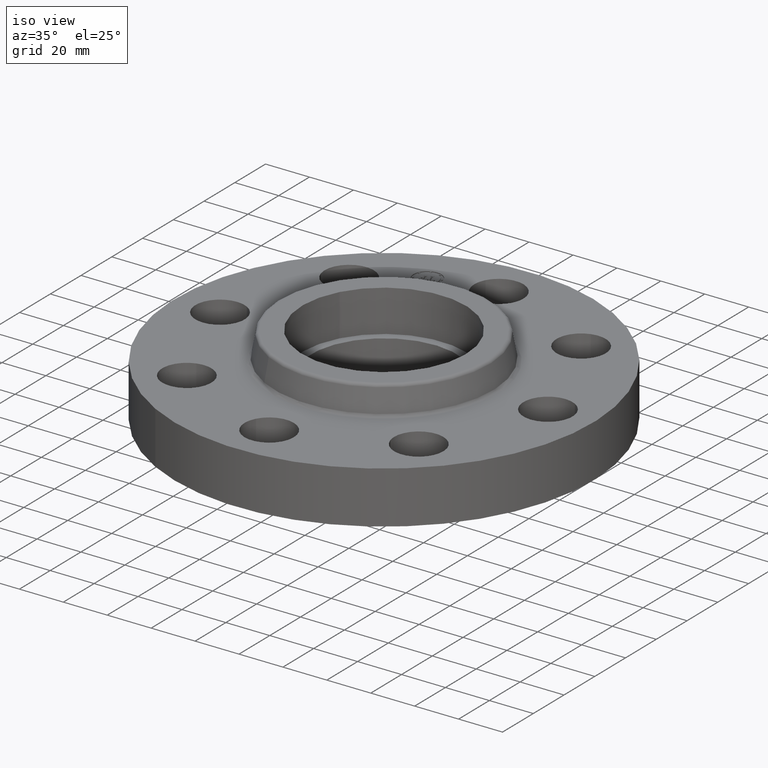
[diagram: clean part render]
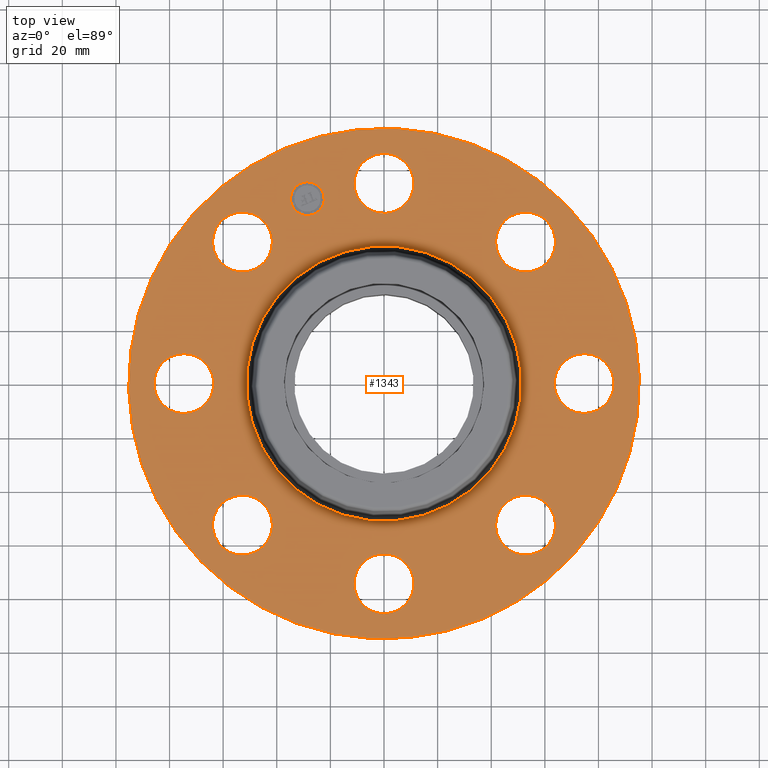
[diagram: tour spotlight — one face highlighted and labeled with its STEP entity id]
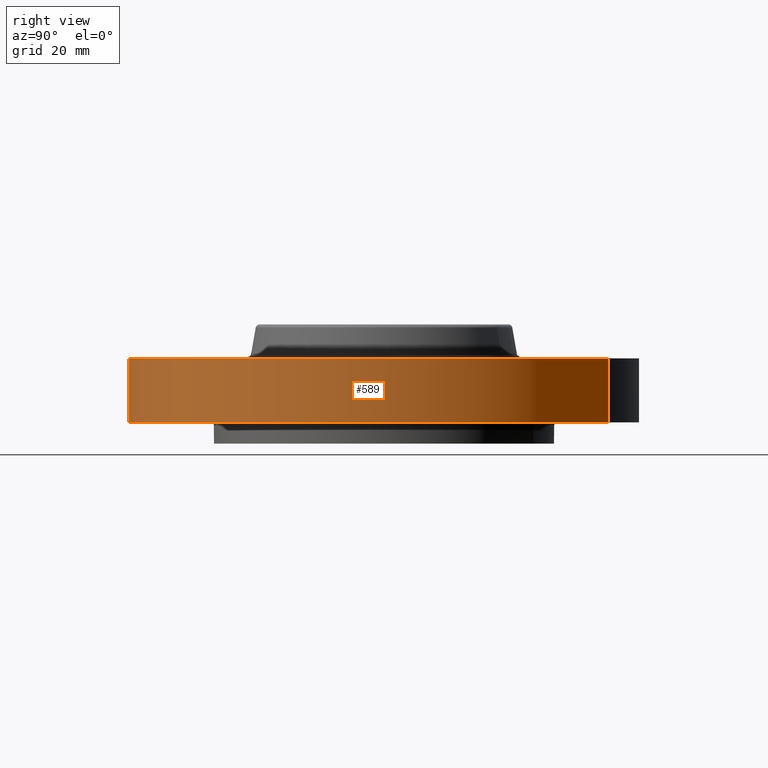
[diagram: tour spotlight — one face highlighted and labeled with its STEP entity id]
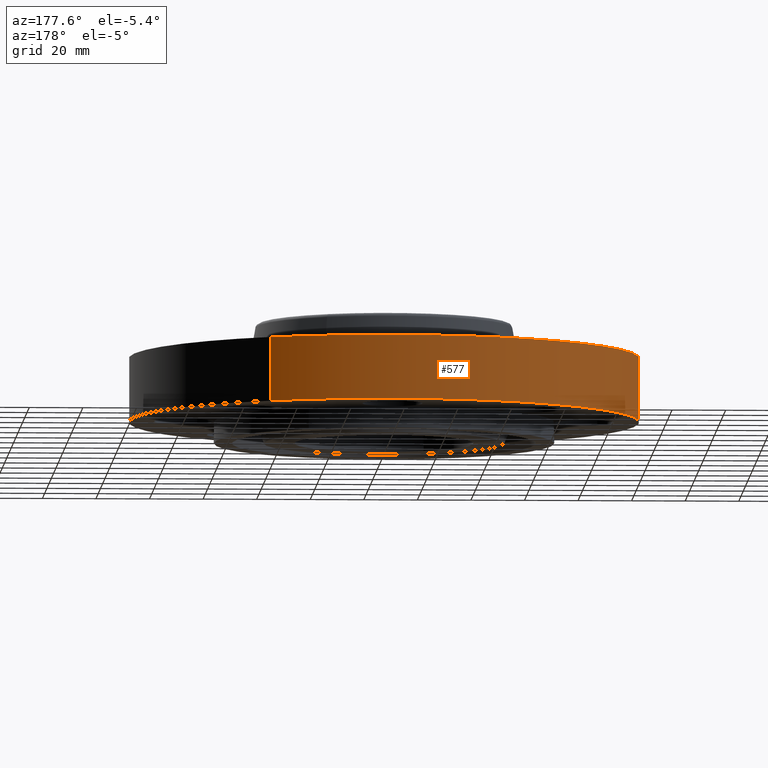
[diagram: tour spotlight — one face highlighted and labeled with its STEP entity id]
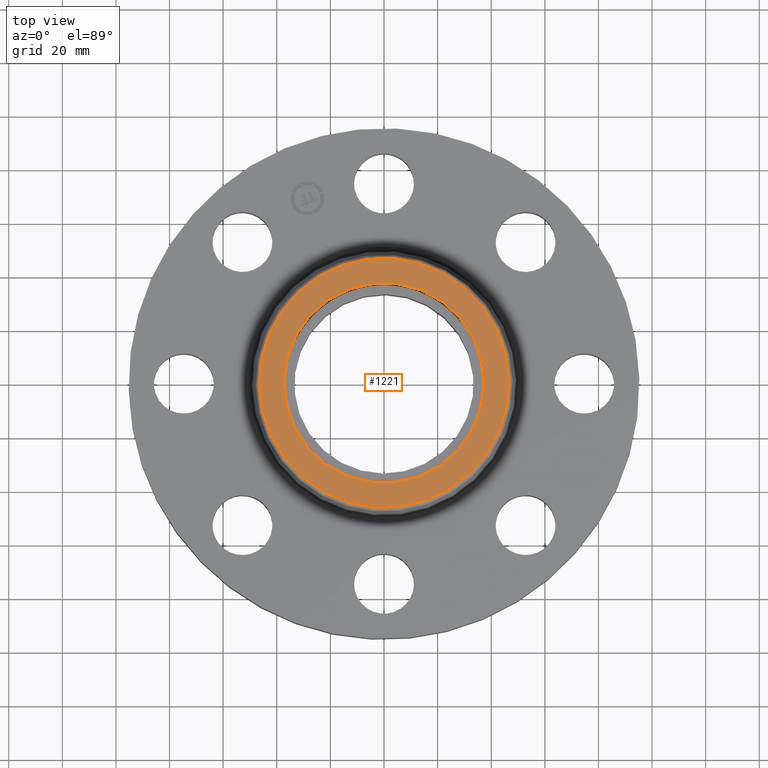
[diagram: tour spotlight — one face highlighted and labeled with its STEP entity id]
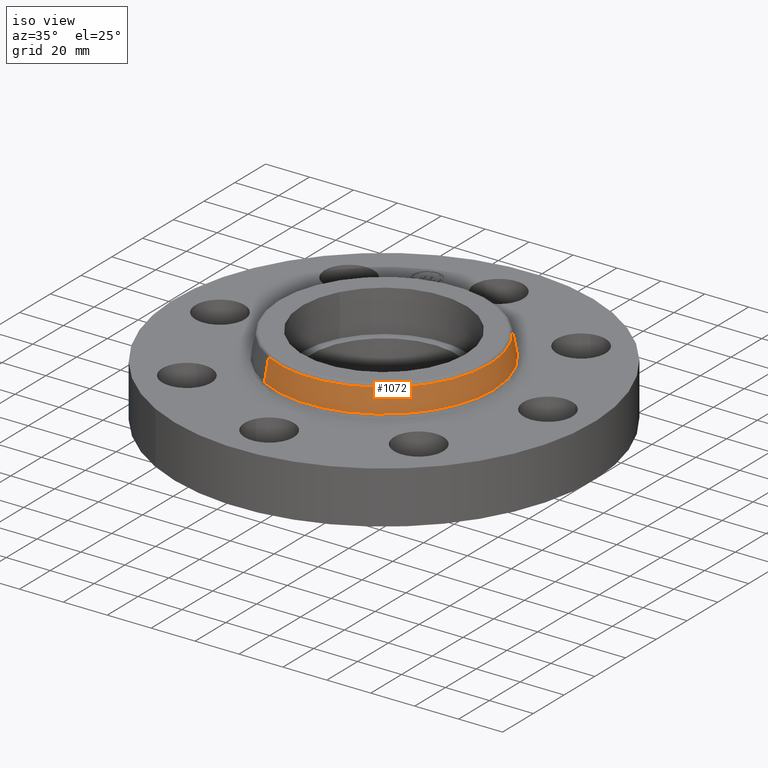
[diagram: tour spotlight — one face highlighted and labeled with its STEP entity id]
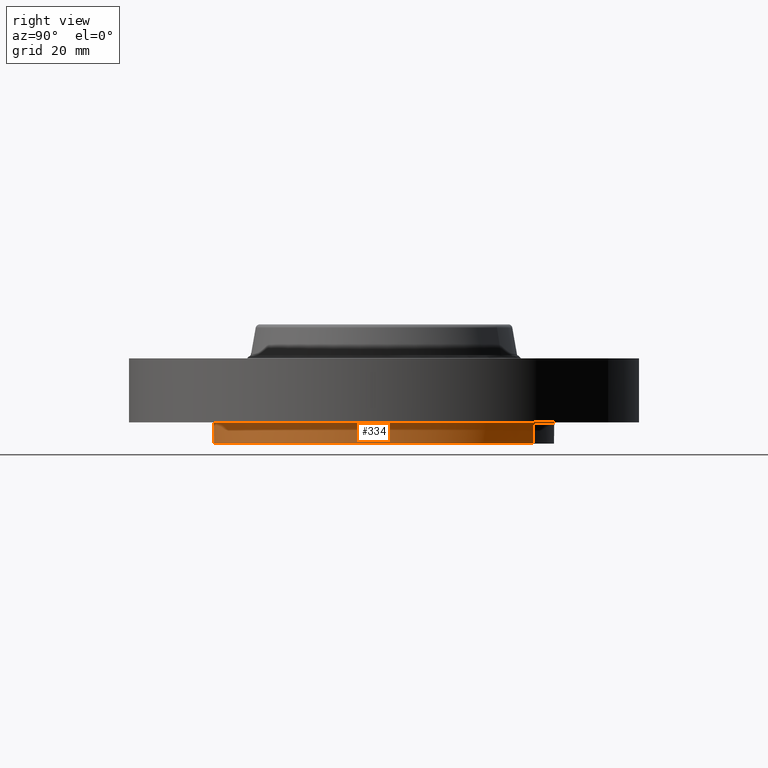
[diagram: tour spotlight — one face highlighted and labeled with its STEP entity id]
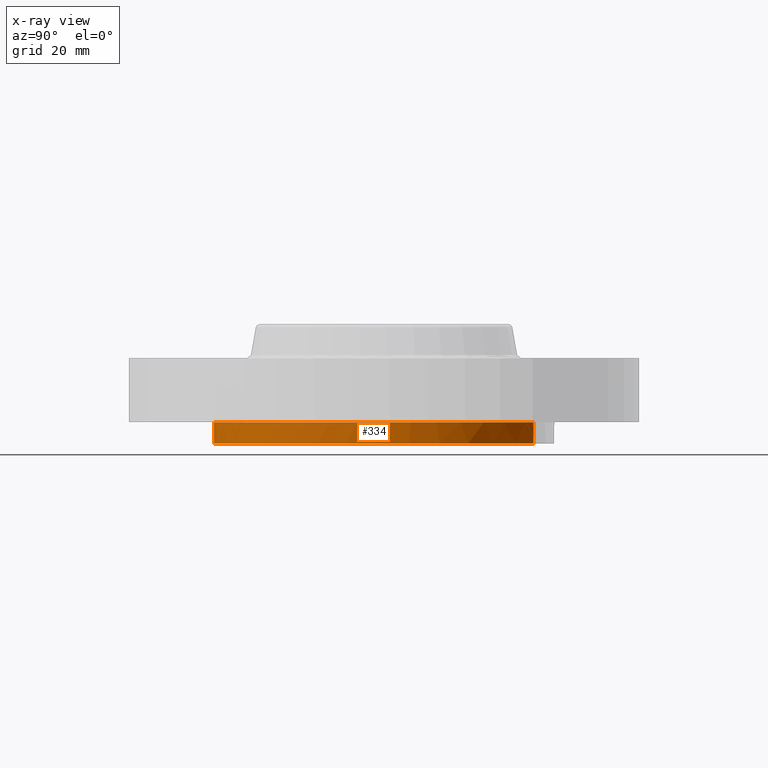
[diagram: x-ray of the same camera — body ghosted, this tour face saturated]
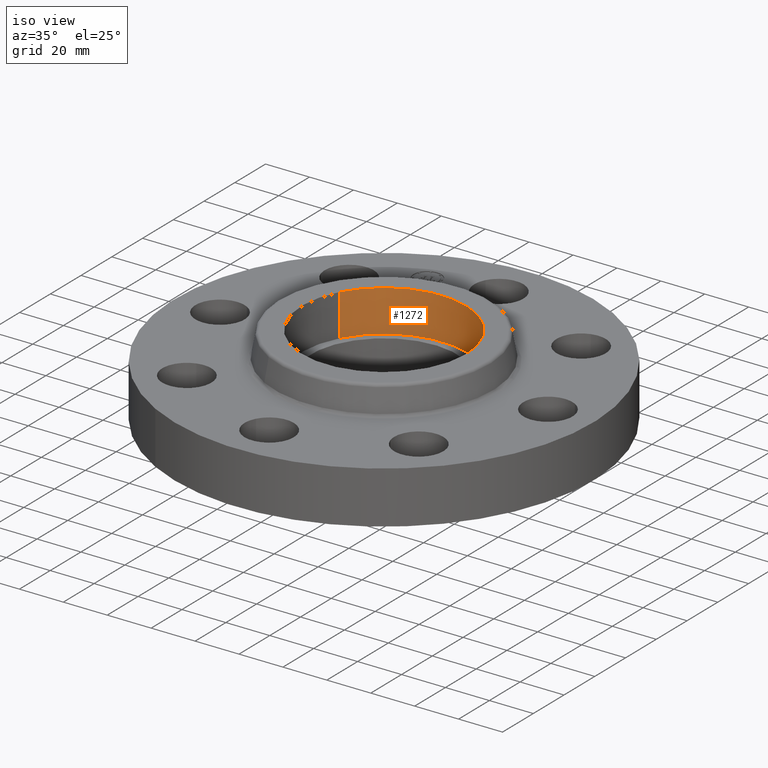
[diagram: tour spotlight — one face highlighted and labeled with its STEP entity id]
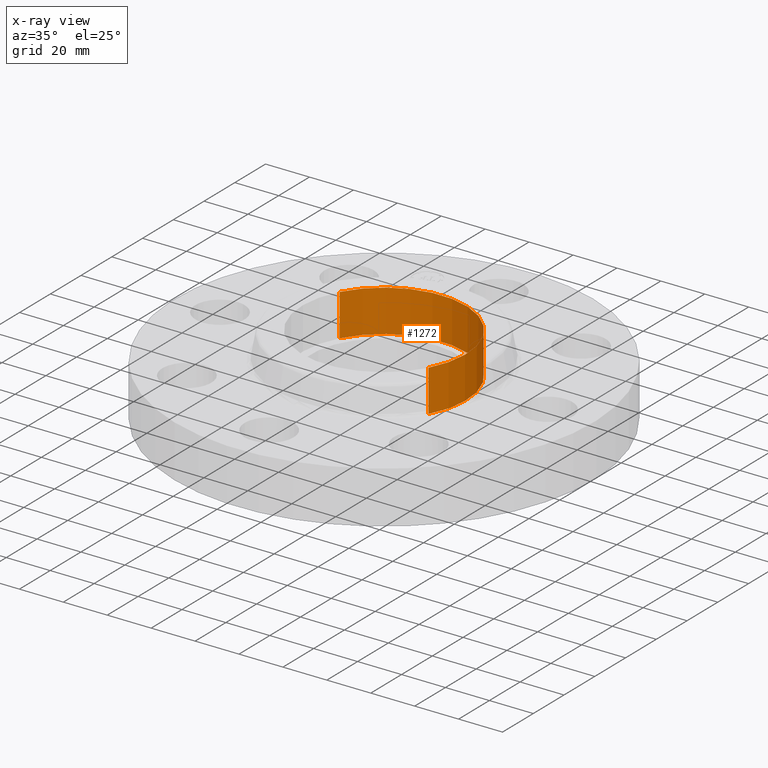
[diagram: x-ray of the same camera — body ghosted, this tour face saturated]
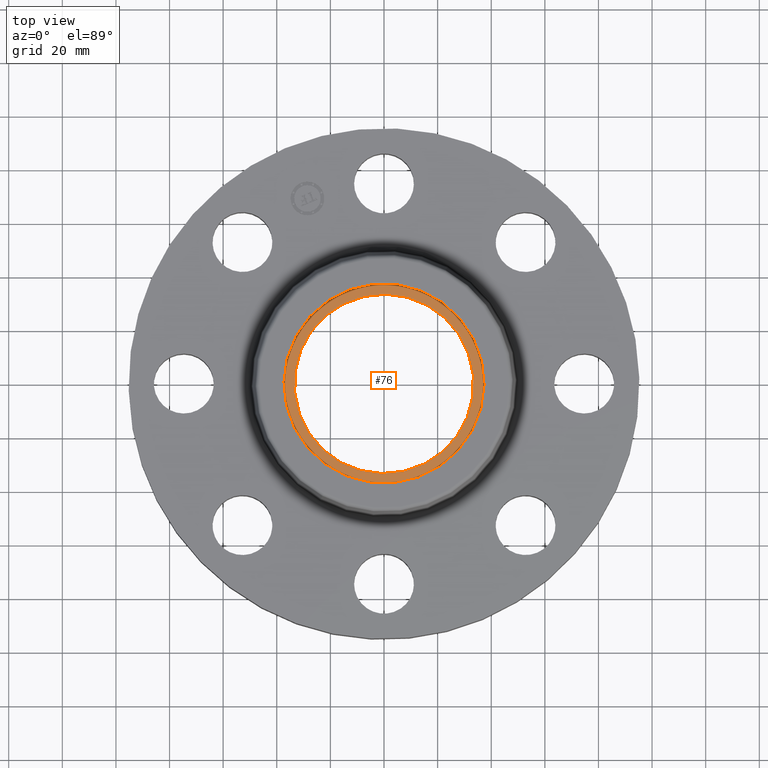
[diagram: tour spotlight — one face highlighted and labeled with its STEP entity id]
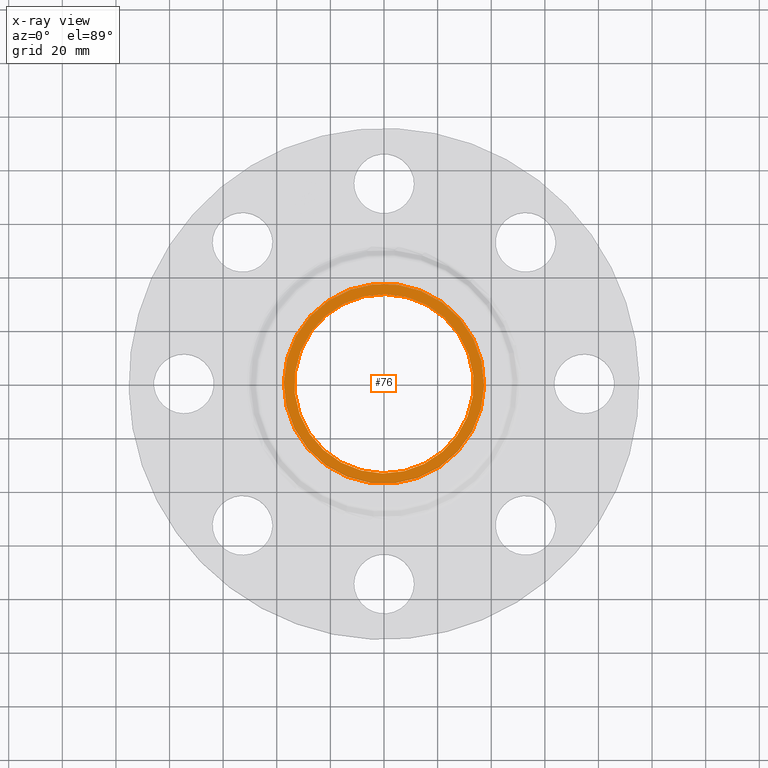
[diagram: x-ray of the same camera — body ghosted, this tour face saturated]
A machine part: a face-by-face anatomy tour. The part has 430 B-rep faces; the first image is the clean iso view, then the 8 largest visible faces are spotlighted one at a time (largest first), each with its STEP entity span.

Face 1 — top view, entity #1343. In plain terms, the highlighted planar face has unit normal (0, 0, -1).
Definition (entity closure, byte-faithful):
#561=AXIS2_PLACEMENT_3D('Circle Axis2P3D',#559,#560,$) ;
#580=AXIS2_PLACEMENT_3D('Circle Axis2P3D',#578,#579,$) ;
#611=AXIS2_PLACEMENT_3D('Circle Axis2P3D',#609,#610,$) ;
#623=AXIS2_PLACEMENT_3D('Circle Axis2P3D',#621,#622,$) ;
#655=AXIS2_PLACEMENT_3D('Circle Axis2P3D',#653,#654,$) ;
#667=AXIS2_PLACEMENT_3D('Circle Axis2P3D',#665,#666,$) ;
#699=AXIS2_PLACEMENT_3D('Circle Axis2P3D',#697,#698,$) ;
#711=AXIS2_PLACEMENT_3D('Circle Axis2P3D',#709,#710,$) ;
#743=AXIS2_PLACEMENT_3D('Circle Axis2P3D',#741,#742,$) ;
#755=AXIS2_PLACEMENT_3D('Circle Axis2P3D',#753,#754,$) ;
#787=AXIS2_PLACEMENT_3D('Circle Axis2P3D',#785,#786,$) ;
#799=AXIS2_PLACEMENT_3D('Circle Axis2P3D',#797,#798,$) ;
#831=AXIS2_PLACEMENT_3D('Circle Axis2P3D',#829,#830,$) ;
#843=AXIS2_PLACEMENT_3D('Circle Axis2P3D',#841,#842,$) ;
#875=AXIS2_PLACEMENT_3D('Circle Axis2P3D',#873,#874,$) ;
#887=AXIS2_PLACEMENT_3D('Circle Axis2P3D',#885,#886,$) ;
#919=AXIS2_PLACEMENT_3D('Circle Axis2P3D',#917,#918,$) ;
#931=AXIS2_PLACEMENT_3D('Circle Axis2P3D',#929,#930,$) ;
#949=AXIS2_PLACEMENT_3D('Circle Axis2P3D',#947,#948,$) ;
#984=AXIS2_PLACEMENT_3D('Circle Axis2P3D',#982,#983,$) ;
#1283=AXIS2_PLACEMENT_3D('Plane Axis2P3D',#1280,#1281,#1282) ;
#1327=AXIS2_PLACEMENT_3D('Circle Axis2P3D',#1325,#1326,$) ;
#1336=AXIS2_PLACEMENT_3D('Circle Axis2P3D',#1334,#1335,$) ;
#556=CARTESIAN_POINT('Vertex',(-1.79784576977,-3.2909346071,0.940000000004)) ;
#559=CARTESIAN_POINT('Axis2P3D Location',(0.,0.,0.940000000004)) ;
#563=CARTESIAN_POINT('Vertex',(1.79784576977,3.2909346071,0.940000000004)) ;
#578=CARTESIAN_POINT('Axis2P3D Location',(0.,0.,0.940000000004)) ;
#599=CARTESIAN_POINT('Vertex',(2.50109577389,-1.95501654299,0.940000000004)) ;
#606=CARTESIAN_POINT('Vertex',(1.6566920995,-2.2027713304,0.940000000004)) ;
#609=CARTESIAN_POINT('Axis2P3D Location',(2.0788939367,-2.0788939367,0.940000000004)) ;
#621=CARTESIAN_POINT('Axis2P3D Location',(2.0788939367,-2.0788939367,0.940000000004)) ;
#643=CARTESIAN_POINT('Vertex',(0.386136327233,-3.150947237,0.940000000004)) ;
#650=CARTESIAN_POINT('Vertex',(-0.386136327233,-2.72905276303,0.940000000004)) ;
#653=CARTESIAN_POINT('Axis2P3D Location',(3.60046158951E-016,-2.94000000001,0.940000000004)) ;
#665=CARTESIAN_POINT('Axis2P3D Location',(3.60046158951E-016,-2.94000000001,0.940000000004)) ;
#687=CARTESIAN_POINT('Vertex',(-1.95501654299,-2.50109577389,0.940000000004)) ;
#694=CARTESIAN_POINT('Vertex',(-2.2027713304,-1.6566920995,0.940000000004)) ;
#697=CARTESIAN_POINT('Axis2P3D Location',(-2.0788939367,-2.0788939367,0.940000000004)) ;
#709=CARTESIAN_POINT('Axis2P3D Location',(-2.0788939367,-2.0788939367,0.940000000004)) ;
#731=CARTESIAN_POINT('Vertex',(-3.150947237,-0.386136327233,0.940000000004)) ;
#738=CARTESIAN_POINT('Vertex',(-2.72905276303,0.386136327233,0.940000000004)) ;
#741=CARTESIAN_POINT('Axis2P3D Location',(-2.94000000001,-5.40069238426E-016,0.940000000004)) ;
#753=CARTESIAN_POINT('Axis2P3D Location',(-2.94000000001,-5.40069238426E-016,0.940000000004)) ;
#775=CARTESIAN_POINT('Vertex',(-2.50109577389,1.95501654299,0.940000000004)) ;
#782=CARTESIAN_POINT('Vertex',(-1.6566920995,2.2027713304,0.940000000004)) ;
#785=CARTESIAN_POINT('Axis2P3D Location',(-2.0788939367,2.0788939367,0.940000000004)) ;
#797=CARTESIAN_POINT('Axis2P3D Location',(-2.0788939367,2.0788939367,0.940000000004)) ;
#819=CARTESIAN_POINT('Vertex',(-0.386136327233,3.150947237,0.940000000004)) ;
#826=CARTESIAN_POINT('Vertex',(0.386136327233,2.72905276303,0.940000000004)) ;
#829=CARTESIAN_POINT('Axis2P3D Location',(0.,2.94000000001,0.940000000004)) ;
#841=CARTESIAN_POINT('Axis2P3D Location',(0.,2.94000000001,0.940000000004)) ;
#863=CARTESIAN_POINT('Vertex',(1.95501654299,2.50109577389,0.940000000004)) ;
#870=CARTESIAN_POINT('Vertex',(2.2027713304,1.6566920995,0.940000000004)) ;
#873=CARTESIAN_POINT('Axis2P3D Location',(2.0788939367,2.0788939367,0.940000000004)) ;
#885=CARTESIAN_POINT('Axis2P3D Location',(2.0788939367,2.0788939367,0.940000000004)) ;
#907=CARTESIAN_POINT('Vertex',(3.150947237,0.386136327233,0.940000000004)) ;
#914=CARTESIAN_POINT('Vertex',(2.72905276303,-0.386136327233,0.940000000004)) ;
#917=CARTESIAN_POINT('Axis2P3D Location',(2.94000000001,-3.79459389627E-016,0.940000000004)) ;
#929=CARTESIAN_POINT('Axis2P3D Location',(2.94000000001,-3.79459389627E-016,0.940000000004)) ;
#947=CARTESIAN_POINT('Axis2P3D Location',(0.,0.,0.940000000004)) ;
#951=CARTESIAN_POINT('Vertex',(0.968605458611,1.77302039917,0.940000000004)) ;
#953=CARTESIAN_POINT('Vertex',(-0.968605458611,-1.77302039917,0.940000000004)) ;
#982=CARTESIAN_POINT('Axis2P3D Location',(0.,0.,0.940000000004)) ;
#1280=CARTESIAN_POINT('Axis2P3D Location',(0.,3.75000000002,0.940000000004)) ;
#1325=CARTESIAN_POINT('Axis2P3D Location',(-1.12508929116,2.71620582559,0.940000000004)) ;
#1329=CARTESIAN_POINT('Vertex',(-1.35374947546,2.62149167608,0.940000000004)) ;
#1331=CARTESIAN_POINT('Vertex',(-0.89642910686,2.8109199751,0.940000000004)) ;
#1334=CARTESIAN_POINT('Axis2P3D Location',(-1.12508929116,2.71620582559,0.940000000004)) ;
#560=DIRECTION('Axis2P3D Direction',(0.,0.,-0.0393700787402)) ;
#579=DIRECTION('Axis2P3D Direction',(0.,0.,-0.0393700787402)) ;
#610=DIRECTION('Axis2P3D Direction',(-0.,0.,-0.0393700787402)) ;
#622=DIRECTION('Axis2P3D Direction',(-0.,0.,-0.0393700787402)) ;
#654=DIRECTION('Axis2P3D Direction',(-0.,0.,-0.0393700787402)) ;
#666=DIRECTION('Axis2P3D Direction',(-0.,0.,-0.0393700787402)) ;
#698=DIRECTION('Axis2P3D Direction',(0.,0.,-0.0393700787402)) ;
#710=DIRECTION('Axis2P3D Direction',(0.,0.,-0.0393700787402)) ;
#742=DIRECTION('Axis2P3D Direction',(0.,0.,-0.0393700787402)) ;
#754=DIRECTION('Axis2P3D Direction',(0.,0.,-0.0393700787402)) ;
#786=DIRECTION('Axis2P3D Direction',(0.,0.,-0.0393700787402)) ;
#798=DIRECTION('Axis2P3D Direction',(0.,0.,-0.0393700787402)) ;
#830=DIRECTION('Axis2P3D Direction',(0.,-0.,-0.0393700787402)) ;
#842=DIRECTION('Axis2P3D Direction',(0.,-0.,-0.0393700787402)) ;
#874=DIRECTION('Axis2P3D Direction',(0.,-0.,-0.0393700787402)) ;
#886=DIRECTION('Axis2P3D Direction',(0.,-0.,-0.0393700787402)) ;
#918=DIRECTION('Axis2P3D Direction',(0.,-0.,-0.0393700787402)) ;
#930=DIRECTION('Axis2P3D Direction',(0.,-0.,-0.0393700787402)) ;
#948=DIRECTION('Axis2P3D Direction',(0.,0.,-0.0393700787402)) ;
#983=DIRECTION('Axis2P3D Direction',(0.,0.,-0.0393700787402)) ;
#1281=DIRECTION('Axis2P3D Direction',(0.,0.,-0.0393700787402)) ;
#1282=DIRECTION('Axis2P3D XDirection',(0.0393700787402,0.,0.)) ;
#1326=DIRECTION('Axis2P3D Direction',(0.,0.,-0.0393700787402)) ;
#1335=DIRECTION('Axis2P3D Direction',(0.,0.,-0.0393700787402)) ;
#1286=ORIENTED_EDGE('',*,*,#582,.F.) ;
#1287=ORIENTED_EDGE('',*,*,#565,.F.) ;
#1290=ORIENTED_EDGE('',*,*,#833,.T.) ;
#1291=ORIENTED_EDGE('',*,*,#845,.T.) ;
#1294=ORIENTED_EDGE('',*,*,#986,.T.) ;
#1295=ORIENTED_EDGE('',*,*,#955,.T.) ;
#1298=ORIENTED_EDGE('',*,*,#889,.T.) ;
#1299=ORIENTED_EDGE('',*,*,#877,.T.) ;
#1302=ORIENTED_EDGE('',*,*,#933,.T.) ;
#1303=ORIENTED_EDGE('',*,*,#921,.T.) ;
#1306=ORIENTED_EDGE('',*,*,#625,.T.) ;
#1307=ORIENTED_EDGE('',*,*,#613,.T.) ;
#1310=ORIENTED_EDGE('',*,*,#669,.T.) ;
#1311=ORIENTED_EDGE('',*,*,#657,.T.) ;
#1314=ORIENTED_EDGE('',*,*,#713,.T.) ;
#1315=ORIENTED_EDGE('',*,*,#701,.T.) ;
#1318=ORIENTED_EDGE('',*,*,#757,.T.) ;
#1319=ORIENTED_EDGE('',*,*,#745,.T.) ;
#1322=ORIENTED_EDGE('',*,*,#801,.T.) ;
#1323=ORIENTED_EDGE('',*,*,#789,.T.) ;
#1340=ORIENTED_EDGE('',*,*,#1333,.T.) ;
#1341=ORIENTED_EDGE('',*,*,#1338,.T.) ;
#1292=FACE_BOUND('',#1289,.T.) ;
#1296=FACE_BOUND('',#1293,.T.) ;
#1300=FACE_BOUND('',#1297,.T.) ;
#1304=FACE_BOUND('',#1301,.T.) ;
#1308=FACE_BOUND('',#1305,.T.) ;
#1312=FACE_BOUND('',#1309,.T.) ;
#1316=FACE_BOUND('',#1313,.T.) ;
#1320=FACE_BOUND('',#1317,.T.) ;
#1324=FACE_BOUND('',#1321,.T.) ;
#1342=FACE_BOUND('',#1339,.T.) ;
#1343=ADVANCED_FACE('PartBody',(#1288,#1292,#1296,#1300,#1304,#1308,#1312,#1316,#1320,#1324,#1342),#1284,.F.) ;
#562=CIRCLE('generated circle',#561,3.75000000002) ;
#581=CIRCLE('generated circle',#580,3.75000000002) ;
#612=CIRCLE('generated circle',#611,0.440000000002) ;
#624=CIRCLE('generated circle',#623,0.440000000002) ;
#656=CIRCLE('generated circle',#655,0.440000000002) ;
#668=CIRCLE('generated circle',#667,0.440000000002) ;
#700=CIRCLE('generated circle',#699,0.440000000002) ;
#712=CIRCLE('generated circle',#711,0.440000000002) ;
#744=CIRCLE('generated circle',#743,0.440000000002) ;
#756=CIRCLE('generated circle',#755,0.440000000002) ;
#788=CIRCLE('generated circle',#787,0.440000000002) ;
#800=CIRCLE('generated circle',#799,0.440000000002) ;
#832=CIRCLE('generated circle',#831,0.440000000002) ;
#844=CIRCLE('generated circle',#843,0.440000000002) ;
#876=CIRCLE('generated circle',#875,0.440000000002) ;
#888=CIRCLE('generated circle',#887,0.440000000002) ;
#920=CIRCLE('generated circle',#919,0.440000000002) ;
#932=CIRCLE('generated circle',#931,0.440000000002) ;
#950=CIRCLE('generated circle',#949,2.02034597788) ;
#985=CIRCLE('generated circle',#984,2.02034597788) ;
#1328=CIRCLE('generated circle',#1327,0.247500000001) ;
#1337=CIRCLE('generated circle',#1336,0.247500000001) ;
#565=EDGE_CURVE('',#557,#564,#562,.T.) ;
#582=EDGE_CURVE('',#564,#557,#581,.T.) ;
#613=EDGE_CURVE('',#600,#607,#612,.T.) ;
#625=EDGE_CURVE('',#607,#600,#624,.T.) ;
#657=EDGE_CURVE('',#644,#651,#656,.T.) ;
#669=EDGE_CURVE('',#651,#644,#668,.T.) ;
#701=EDGE_CURVE('',#688,#695,#700,.T.) ;
#713=EDGE_CURVE('',#695,#688,#712,.T.) ;
#745=EDGE_CURVE('',#732,#739,#744,.T.) ;
#757=EDGE_CURVE('',#739,#732,#756,.T.) ;
#789=EDGE_CURVE('',#776,#783,#788,.T.) ;
#801=EDGE_CURVE('',#783,#776,#800,.T.) ;
#833=EDGE_CURVE('',#820,#827,#832,.T.) ;
#845=EDGE_CURVE('',#827,#820,#844,.T.) ;
#877=EDGE_CURVE('',#864,#871,#876,.T.) ;
#889=EDGE_CURVE('',#871,#864,#888,.T.) ;
#921=EDGE_CURVE('',#908,#915,#920,.T.) ;
#933=EDGE_CURVE('',#915,#908,#932,.T.) ;
#955=EDGE_CURVE('',#952,#954,#950,.T.) ;
#986=EDGE_CURVE('',#954,#952,#985,.T.) ;
#1333=EDGE_CURVE('',#1330,#1332,#1328,.T.) ;
#1338=EDGE_CURVE('',#1332,#1330,#1337,.T.) ;
#1285=EDGE_LOOP('',(#1286,#1287)) ;
#1289=EDGE_LOOP('',(#1290,#1291)) ;
#1293=EDGE_LOOP('',(#1294,#1295)) ;
#1297=EDGE_LOOP('',(#1298,#1299)) ;
#1301=EDGE_LOOP('',(#1302,#1303)) ;
#1305=EDGE_LOOP('',(#1306,#1307)) ;
#1309=EDGE_LOOP('',(#1310,#1311)) ;
#1313=EDGE_LOOP('',(#1314,#1315)) ;
#1317=EDGE_LOOP('',(#1318,#1319)) ;
#1321=EDGE_LOOP('',(#1322,#1323)) ;
#1339=EDGE_LOOP('',(#1340,#1341)) ;
#1288=FACE_OUTER_BOUND('',#1285,.T.) ;
#1284=PLANE('',#1283) ;
#557=VERTEX_POINT('',#556) ;
#564=VERTEX_POINT('',#563) ;
#600=VERTEX_POINT('',#599) ;
#607=VERTEX_POINT('',#606) ;
#644=VERTEX_POINT('',#643) ;
#651=VERTEX_POINT('',#650) ;
#688=VERTEX_POINT('',#687) ;
#695=VERTEX_POINT('',#694) ;
#732=VERTEX_POINT('',#731) ;
#739=VERTEX_POINT('',#738) ;
#776=VERTEX_POINT('',#775) ;
#783=VERTEX_POINT('',#782) ;
#820=VERTEX_POINT('',#819) ;
#827=VERTEX_POINT('',#826) ;
#864=VERTEX_POINT('',#863) ;
#871=VERTEX_POINT('',#870) ;
#908=VERTEX_POINT('',#907) ;
#915=VERTEX_POINT('',#914) ;
#952=VERTEX_POINT('',#951) ;
#954=VERTEX_POINT('',#953) ;
#1330=VERTEX_POINT('',#1329) ;
#1332=VERTEX_POINT('',#1331) ;

Face 2 — right view, entity #589. In plain terms, the highlighted cylindrical surface (partial cylindrical patch) has radius 95.25 mm, axis along (0, 0, -1).
Definition (entity closure, byte-faithful):
#351=AXIS2_PLACEMENT_3D('Circle Axis2P3D',#349,#350,$) ;
#550=AXIS2_PLACEMENT_3D('Cylinder Axis2P3D',#547,#548,#549) ;
#580=AXIS2_PLACEMENT_3D('Circle Axis2P3D',#578,#579,$) ;
#344=CARTESIAN_POINT('Vertex',(-1.79784576977,-3.2909346071,2.79741234551E-016)) ;
#346=CARTESIAN_POINT('Vertex',(1.79784576977,3.2909346071,2.79741234551E-016)) ;
#349=CARTESIAN_POINT('Axis2P3D Location',(0.,0.,0.)) ;
#547=CARTESIAN_POINT('Axis2P3D Location',(0.,0.,0.563500000002)) ;
#552=CARTESIAN_POINT('Line Origine',(-1.79784576977,-3.2909346071,0.470000000002)) ;
#556=CARTESIAN_POINT('Vertex',(-1.79784576977,-3.2909346071,0.940000000004)) ;
#563=CARTESIAN_POINT('Vertex',(1.79784576977,3.2909346071,0.940000000004)) ;
#566=CARTESIAN_POINT('Line Origine',(1.79784576977,3.2909346071,0.470000000002)) ;
#578=CARTESIAN_POINT('Axis2P3D Location',(0.,0.,0.940000000004)) ;
#350=DIRECTION('Axis2P3D Direction',(0.,0.,-0.0393700787402)) ;
#548=DIRECTION('Axis2P3D Direction',(0.,0.,-0.0393700787402)) ;
#549=DIRECTION('Axis2P3D XDirection',(0.0188750212049,0.0345504945626,0.)) ;
#553=DIRECTION('Vector Direction',(0.,0.,-0.0393700787402)) ;
#567=DIRECTION('Vector Direction',(0.,0.,-0.0393700787402)) ;
#579=DIRECTION('Axis2P3D Direction',(0.,0.,-0.0393700787402)) ;
#554=VECTOR('Line Direction',#553,0.0393700787402) ;
#568=VECTOR('Line Direction',#567,0.0393700787402) ;
#584=ORIENTED_EDGE('',*,*,#353,.F.) ;
#585=ORIENTED_EDGE('',*,*,#570,.T.) ;
#586=ORIENTED_EDGE('',*,*,#582,.T.) ;
#587=ORIENTED_EDGE('',*,*,#558,.F.) ;
#589=ADVANCED_FACE('PartBody',(#588),#551,.T.) ;
#352=CIRCLE('generated circle',#351,3.75000000002) ;
#581=CIRCLE('generated circle',#580,3.75000000002) ;
#551=CYLINDRICAL_SURFACE('generated cylinder',#550,3.75000000002) ;
#353=EDGE_CURVE('',#347,#345,#352,.T.) ;
#558=EDGE_CURVE('',#345,#557,#555,.F.) ;
#570=EDGE_CURVE('',#347,#564,#569,.F.) ;
#582=EDGE_CURVE('',#564,#557,#581,.T.) ;
#583=EDGE_LOOP('',(#584,#585,#586,#587)) ;
#588=FACE_OUTER_BOUND('',#583,.T.) ;
#555=LINE('Line',#552,#554) ;
#569=LINE('Line',#566,#568) ;
#345=VERTEX_POINT('',#344) ;
#347=VERTEX_POINT('',#346) ;
#557=VERTEX_POINT('',#556) ;
#564=VERTEX_POINT('',#563) ;

Face 3 — auxiliary view, entity #577. In plain terms, the highlighted cylindrical surface (partial cylindrical patch) has radius 95.25 mm, axis along (0, 0, -1).
Definition (entity closure, byte-faithful):
#342=AXIS2_PLACEMENT_3D('Circle Axis2P3D',#340,#341,$) ;
#550=AXIS2_PLACEMENT_3D('Cylinder Axis2P3D',#547,#548,#549) ;
#561=AXIS2_PLACEMENT_3D('Circle Axis2P3D',#559,#560,$) ;
#340=CARTESIAN_POINT('Axis2P3D Location',(0.,0.,0.)) ;
#344=CARTESIAN_POINT('Vertex',(-1.79784576977,-3.2909346071,2.79741234551E-016)) ;
#346=CARTESIAN_POINT('Vertex',(1.79784576977,3.2909346071,2.79741234551E-016)) ;
#547=CARTESIAN_POINT('Axis2P3D Location',(0.,0.,0.563500000002)) ;
#552=CARTESIAN_POINT('Line Origine',(-1.79784576977,-3.2909346071,0.470000000002)) ;
#556=CARTESIAN_POINT('Vertex',(-1.79784576977,-3.2909346071,0.940000000004)) ;
#559=CARTESIAN_POINT('Axis2P3D Location',(0.,0.,0.940000000004)) ;
#563=CARTESIAN_POINT('Vertex',(1.79784576977,3.2909346071,0.940000000004)) ;
#566=CARTESIAN_POINT('Line Origine',(1.79784576977,3.2909346071,0.470000000002)) ;
#341=DIRECTION('Axis2P3D Direction',(0.,0.,-0.0393700787402)) ;
#548=DIRECTION('Axis2P3D Direction',(0.,0.,-0.0393700787402)) ;
#549=DIRECTION('Axis2P3D XDirection',(0.0188750212049,0.0345504945626,0.)) ;
#553=DIRECTION('Vector Direction',(0.,0.,-0.0393700787402)) ;
#560=DIRECTION('Axis2P3D Direction',(0.,0.,-0.0393700787402)) ;
#567=DIRECTION('Vector Direction',(0.,0.,-0.0393700787402)) ;
#554=VECTOR('Line Direction',#553,0.0393700787402) ;
#568=VECTOR('Line Direction',#567,0.0393700787402) ;
#572=ORIENTED_EDGE('',*,*,#348,.F.) ;
#573=ORIENTED_EDGE('',*,*,#558,.T.) ;
#574=ORIENTED_EDGE('',*,*,#565,.T.) ;
#575=ORIENTED_EDGE('',*,*,#570,.F.) ;
#577=ADVANCED_FACE('PartBody',(#576),#551,.T.) ;
#343=CIRCLE('generated circle',#342,3.75000000002) ;
#562=CIRCLE('generated circle',#561,3.75000000002) ;
#551=CYLINDRICAL_SURFACE('generated cylinder',#550,3.75000000002) ;
#348=EDGE_CURVE('',#345,#347,#343,.T.) ;
#558=EDGE_CURVE('',#345,#557,#555,.F.) ;
#565=EDGE_CURVE('',#557,#564,#562,.T.) ;
#570=EDGE_CURVE('',#347,#564,#569,.F.) ;
#571=EDGE_LOOP('',(#572,#573,#574,#575)) ;
#576=FACE_OUTER_BOUND('',#571,.T.) ;
#555=LINE('Line',#552,#554) ;
#569=LINE('Line',#566,#568) ;
#345=VERTEX_POINT('',#344) ;
#347=VERTEX_POINT('',#346) ;
#557=VERTEX_POINT('',#556) ;
#564=VERTEX_POINT('',#563) ;

Face 4 — top view, entity #1221. In plain terms, the highlighted planar face has unit normal (0, 0, -1).
Definition (entity closure, byte-faithful):
#1142=AXIS2_PLACEMENT_3D('Circle Axis2P3D',#1140,#1141,$) ;
#1161=AXIS2_PLACEMENT_3D('Circle Axis2P3D',#1159,#1160,$) ;
#1197=AXIS2_PLACEMENT_3D('Plane Axis2P3D',#1194,#1195,#1196) ;
#1205=AXIS2_PLACEMENT_3D('Circle Axis2P3D',#1203,#1204,$) ;
#1214=AXIS2_PLACEMENT_3D('Circle Axis2P3D',#1212,#1213,$) ;
#1137=CARTESIAN_POINT('Vertex',(0.878063334648,1.60728415296,1.44000000001)) ;
#1140=CARTESIAN_POINT('Axis2P3D Location',(0.,0.,1.44000000001)) ;
#1144=CARTESIAN_POINT('Vertex',(-0.878063334648,-1.60728415296,1.44000000001)) ;
#1159=CARTESIAN_POINT('Axis2P3D Location',(0.,0.,1.44000000001)) ;
#1194=CARTESIAN_POINT('Axis2P3D Location',(0.,1.83149053178,1.44000000001)) ;
#1203=CARTESIAN_POINT('Axis2P3D Location',(6.99353086378E-017,-2.79741234551E-016,1.44000000001)) ;
#1207=CARTESIAN_POINT('Vertex',(-1.29004636598,0.704755541751,1.44000000001)) ;
#1209=CARTESIAN_POINT('Vertex',(1.29004636598,-0.704755541751,1.44000000001)) ;
#1212=CARTESIAN_POINT('Axis2P3D Location',(-6.99353086378E-017,-5.59482469102E-016,1.44000000001)) ;
#1141=DIRECTION('Axis2P3D Direction',(0.,0.,-0.0393700787402)) ;
#1160=DIRECTION('Axis2P3D Direction',(0.,0.,-0.0393700787402)) ;
#1195=DIRECTION('Axis2P3D Direction',(0.,0.,-0.0393700787402)) ;
#1196=DIRECTION('Axis2P3D XDirection',(0.0393700787402,0.,0.)) ;
#1204=DIRECTION('Axis2P3D Direction',(0.,0.,-0.0393700787402)) ;
#1213=DIRECTION('Axis2P3D Direction',(0.,0.,-0.0393700787402)) ;
#1200=ORIENTED_EDGE('',*,*,#1146,.F.) ;
#1201=ORIENTED_EDGE('',*,*,#1163,.F.) ;
#1218=ORIENTED_EDGE('',*,*,#1211,.T.) ;
#1219=ORIENTED_EDGE('',*,*,#1216,.T.) ;
#1220=FACE_BOUND('',#1217,.T.) ;
#1221=ADVANCED_FACE('PartBody',(#1202,#1220),#1198,.F.) ;
#1143=CIRCLE('generated circle',#1142,1.83149053178) ;
#1162=CIRCLE('generated circle',#1161,1.83149053178) ;
#1206=CIRCLE('generated circle',#1205,1.47000000001) ;
#1215=CIRCLE('generated circle',#1214,1.47000000001) ;
#1146=EDGE_CURVE('',#1138,#1145,#1143,.T.) ;
#1163=EDGE_CURVE('',#1145,#1138,#1162,.T.) ;
#1211=EDGE_CURVE('',#1208,#1210,#1206,.T.) ;
#1216=EDGE_CURVE('',#1210,#1208,#1215,.T.) ;
#1199=EDGE_LOOP('',(#1200,#1201)) ;
#1217=EDGE_LOOP('',(#1218,#1219)) ;
#1202=FACE_OUTER_BOUND('',#1199,.T.) ;
#1198=PLANE('',#1197) ;
#1138=VERTEX_POINT('',#1137) ;
#1145=VERTEX_POINT('',#1144) ;
#1208=VERTEX_POINT('',#1207) ;
#1210=VERTEX_POINT('',#1209) ;

Face 5 — iso view, entity #1072. In plain terms, the highlighted conical surface has half-angle 10 deg.
Definition (entity closure, byte-faithful):
#965=AXIS2_PLACEMENT_3D('Circle Axis2P3D',#963,#964,$) ;
#1045=AXIS2_PLACEMENT_3D('Cone Axis2P3D',#1042,#1043,#1044) ;
#1056=AXIS2_PLACEMENT_3D('Circle Axis2P3D',#1054,#1055,$) ;
#960=CARTESIAN_POINT('Vertex',(0.940276939367,1.72116539252,0.989581109344)) ;
#963=CARTESIAN_POINT('Axis2P3D Location',(0.,0.,0.989581109344)) ;
#967=CARTESIAN_POINT('Vertex',(-0.940276939367,-1.72116539252,0.989581109344)) ;
#1042=CARTESIAN_POINT('Axis2P3D Location',(0.,0.,1.39041889067)) ;
#1047=CARTESIAN_POINT('Line Origine',(0.92333439663,1.69015227607,1.19)) ;
#1051=CARTESIAN_POINT('Vertex',(0.906391853893,1.65913915961,1.39041889067)) ;
#1054=CARTESIAN_POINT('Axis2P3D Location',(0.,0.,1.39041889067)) ;
#1058=CARTESIAN_POINT('Vertex',(-0.906391853893,-1.65913915961,1.39041889067)) ;
#1061=CARTESIAN_POINT('Line Origine',(-0.92333439663,-1.69015227607,1.19)) ;
#964=DIRECTION('Axis2P3D Direction',(0.,0.,-0.0393700787402)) ;
#1043=DIRECTION('Axis2P3D Direction',(0.,0.,-0.0393700787402)) ;
#1044=DIRECTION('Axis2P3D XDirection',(-0.0188750212049,-0.0345504945626,0.)) ;
#1048=DIRECTION('Vector Direction',(0.00327761303565,0.00599963041829,-0.03877195878)) ;
#1055=DIRECTION('Axis2P3D Direction',(0.,0.,-0.0393700787402)) ;
#1062=DIRECTION('Vector Direction',(-0.00327761303565,-0.00599963041829,-0.03877195878)) ;
#1049=VECTOR('Line Direction',#1048,0.0393700787402) ;
#1063=VECTOR('Line Direction',#1062,0.0393700787402) ;
#1067=ORIENTED_EDGE('',*,*,#969,.F.) ;
#1068=ORIENTED_EDGE('',*,*,#1053,.T.) ;
#1069=ORIENTED_EDGE('',*,*,#1060,.T.) ;
#1070=ORIENTED_EDGE('',*,*,#1065,.F.) ;
#1072=ADVANCED_FACE('PartBody',(#1071),#1046,.T.) ;
#966=CIRCLE('generated circle',#965,1.9612575127) ;
#1057=CIRCLE('generated circle',#1056,1.89057899696) ;
#1046=CONICAL_SURFACE('Cone',#1045,1.89057899696,0.174532925199) ;
#969=EDGE_CURVE('',#961,#968,#966,.T.) ;
#1053=EDGE_CURVE('',#961,#1052,#1050,.F.) ;
#1060=EDGE_CURVE('',#1052,#1059,#1057,.T.) ;
#1065=EDGE_CURVE('',#968,#1059,#1064,.F.) ;
#1066=EDGE_LOOP('',(#1067,#1068,#1069,#1070)) ;
#1071=FACE_OUTER_BOUND('',#1066,.T.) ;
#1050=LINE('Line',#1047,#1049) ;
#1064=LINE('Line',#1061,#1063) ;
#961=VERTEX_POINT('',#960) ;
#968=VERTEX_POINT('',#967) ;
#1052=VERTEX_POINT('',#1051) ;
#1059=VERTEX_POINT('',#1058) ;

Face 6 — right view, entity #334. An x-ray twin of the same camera follows (body ghosted, this face saturated) — the face is partly hidden behind the body. In plain terms, the highlighted cylindrical surface (partial cylindrical patch) has radius 63.5 mm, axis along (0, 0, -1).
Definition (entity closure, byte-faithful):
#202=AXIS2_PLACEMENT_3D('Circle Axis2P3D',#200,#201,$) ;
#231=AXIS2_PLACEMENT_3D('Cylinder Axis2P3D',#228,#229,#230) ;
#293=AXIS2_PLACEMENT_3D('Circle Axis2P3D',#291,#292,$) ;
#300=AXIS2_PLACEMENT_3D('Circle Axis2P3D',#298,#299,$) ;
#307=AXIS2_PLACEMENT_3D('Circle Axis2P3D',#305,#306,$) ;
#314=AXIS2_PLACEMENT_3D('Circle Axis2P3D',#312,#313,$) ;
#321=AXIS2_PLACEMENT_3D('Circle Axis2P3D',#319,#320,$) ;
#195=CARTESIAN_POINT('Vertex',(-1.19856384652,-2.19395640473,-0.313000000001)) ;
#197=CARTESIAN_POINT('Vertex',(1.19856384652,2.19395640473,-0.313000000001)) ;
#200=CARTESIAN_POINT('Axis2P3D Location',(0.,0.,-0.313000000001)) ;
#228=CARTESIAN_POINT('Axis2P3D Location',(0.,0.,0.563500000002)) ;
#233=CARTESIAN_POINT('Line Origine',(-1.19856384652,-2.19395640473,-0.156500000001)) ;
#237=CARTESIAN_POINT('Vertex',(-1.19856384652,-2.19395640473,1.39870617276E-016)) ;
#272=CARTESIAN_POINT('Vertex',(1.19856384652,2.19395640473,1.39870617276E-016)) ;
#275=CARTESIAN_POINT('Line Origine',(1.19856384652,2.19395640473,-0.156500000001)) ;
#291=CARTESIAN_POINT('Axis2P3D Location',(0.,0.,2.79741234551E-016)) ;
#295=CARTESIAN_POINT('Vertex',(1.76776695297,1.76776695297,0.)) ;
#298=CARTESIAN_POINT('Axis2P3D Location',(0.,0.,2.79741234551E-016)) ;
#302=CARTESIAN_POINT('Vertex',(2.50000000001,2.79741234551E-016,0.)) ;
#305=CARTESIAN_POINT('Axis2P3D Location',(0.,0.,2.79741234551E-016)) ;
#309=CARTESIAN_POINT('Vertex',(1.76776695297,-1.76776695297,0.)) ;
#312=CARTESIAN_POINT('Axis2P3D Location',(0.,0.,2.79741234551E-016)) ;
#316=CARTESIAN_POINT('Vertex',(3.09971815926E-016,-2.50000000001,0.)) ;
#319=CARTESIAN_POINT('Axis2P3D Location',(0.,0.,2.79741234551E-016)) ;
#201=DIRECTION('Axis2P3D Direction',(0.,0.,-0.0393700787402)) ;
#229=DIRECTION('Axis2P3D Direction',(0.,0.,-0.0393700787402)) ;
#230=DIRECTION('Axis2P3D XDirection',(0.0188750212049,0.0345504945626,0.)) ;
#234=DIRECTION('Vector Direction',(0.,0.,-0.0393700787402)) ;
#276=DIRECTION('Vector Direction',(0.,0.,-0.0393700787402)) ;
#292=DIRECTION('Axis2P3D Direction',(0.,0.,-0.0393700787402)) ;
#299=DIRECTION('Axis2P3D Direction',(0.,0.,-0.0393700787402)) ;
#306=DIRECTION('Axis2P3D Direction',(0.,0.,-0.0393700787402)) ;
#313=DIRECTION('Axis2P3D Direction',(0.,0.,-0.0393700787402)) ;
#320=DIRECTION('Axis2P3D Direction',(0.,0.,-0.0393700787402)) ;
#235=VECTOR('Line Direction',#234,0.0393700787402) ;
#277=VECTOR('Line Direction',#276,0.0393700787402) ;
#325=ORIENTED_EDGE('',*,*,#204,.F.) ;
#326=ORIENTED_EDGE('',*,*,#279,.T.) ;
#327=ORIENTED_EDGE('',*,*,#297,.T.) ;
#328=ORIENTED_EDGE('',*,*,#304,.T.) ;
#329=ORIENTED_EDGE('',*,*,#311,.T.) ;
#330=ORIENTED_EDGE('',*,*,#318,.T.) ;
#331=ORIENTED_EDGE('',*,*,#323,.T.) ;
#332=ORIENTED_EDGE('',*,*,#239,.F.) ;
#334=ADVANCED_FACE('PartBody',(#333),#232,.T.) ;
#203=CIRCLE('generated circle',#202,2.50000000001) ;
#294=CIRCLE('generated circle',#293,2.50000000001) ;
#301=CIRCLE('generated circle',#300,2.50000000001) ;
#308=CIRCLE('generated circle',#307,2.50000000001) ;
#315=CIRCLE('generated circle',#314,2.50000000001) ;
#322=CIRCLE('generated circle',#321,2.50000000001) ;
#232=CYLINDRICAL_SURFACE('generated cylinder',#231,2.50000000001) ;
#204=EDGE_CURVE('',#198,#196,#203,.T.) ;
#239=EDGE_CURVE('',#196,#238,#236,.F.) ;
#279=EDGE_CURVE('',#198,#273,#278,.F.) ;
#297=EDGE_CURVE('',#273,#296,#294,.T.) ;
#304=EDGE_CURVE('',#296,#303,#301,.T.) ;
#311=EDGE_CURVE('',#303,#310,#308,.T.) ;
#318=EDGE_CURVE('',#310,#317,#315,.T.) ;
#323=EDGE_CURVE('',#317,#238,#322,.T.) ;
#324=EDGE_LOOP('',(#325,#326,#327,#328,#329,#330,#331,#332)) ;
#333=FACE_OUTER_BOUND('',#324,.T.) ;
#236=LINE('Line',#233,#235) ;
#278=LINE('Line',#275,#277) ;
#196=VERTEX_POINT('',#195) ;
#198=VERTEX_POINT('',#197) ;
#238=VERTEX_POINT('',#237) ;
#273=VERTEX_POINT('',#272) ;
#296=VERTEX_POINT('',#295) ;
#303=VERTEX_POINT('',#302) ;
#310=VERTEX_POINT('',#309) ;
#317=VERTEX_POINT('',#316) ;

Face 7 — iso view, entity #1272. An x-ray twin of the same camera follows (body ghosted, this face saturated) — the face is partly hidden behind the body. In plain terms, the highlighted cylindrical surface (partial cylindrical patch) has radius 37.338 mm, axis along (0, 0, -1).
Definition (entity closure, byte-faithful):
#42=AXIS2_PLACEMENT_3D('Circle Axis2P3D',#40,#41,$) ;
#1205=AXIS2_PLACEMENT_3D('Circle Axis2P3D',#1203,#1204,$) ;
#1254=AXIS2_PLACEMENT_3D('Cylinder Axis2P3D',#1251,#1252,#1253) ;
#40=CARTESIAN_POINT('Axis2P3D Location',(1.04902962957E-016,-3.49676543189E-016,0.690000000003)) ;
#44=CARTESIAN_POINT('Vertex',(-1.29004636598,0.704755541751,0.690000000003)) ;
#46=CARTESIAN_POINT('Vertex',(1.29004636598,-0.704755541751,0.690000000003)) ;
#1203=CARTESIAN_POINT('Axis2P3D Location',(6.99353086378E-017,-2.79741234551E-016,1.44000000001)) ;
#1207=CARTESIAN_POINT('Vertex',(-1.29004636598,0.704755541751,1.44000000001)) ;
#1209=CARTESIAN_POINT('Vertex',(1.29004636598,-0.704755541751,1.44000000001)) ;
#1251=CARTESIAN_POINT('Axis2P3D Location',(1.04902962957E-016,-3.49676543189E-016,1.43606299213)) ;
#1256=CARTESIAN_POINT('Line Origine',(-1.29004636598,0.704755541751,1.065)) ;
#1261=CARTESIAN_POINT('Line Origine',(1.29004636598,-0.704755541751,1.065)) ;
#41=DIRECTION('Axis2P3D Direction',(0.,0.,-0.0393700787402)) ;
#1204=DIRECTION('Axis2P3D Direction',(0.,0.,-0.0393700787402)) ;
#1252=DIRECTION('Axis2P3D Direction',(0.,0.,-0.0393700787402)) ;
#1253=DIRECTION('Axis2P3D XDirection',(0.0345504945626,-0.0188750212049,0.)) ;
#1257=DIRECTION('Vector Direction',(0.,0.,-0.0393700787402)) ;
#1262=DIRECTION('Vector Direction',(0.,0.,-0.0393700787402)) ;
#1258=VECTOR('Line Direction',#1257,0.0393700787402) ;
#1263=VECTOR('Line Direction',#1262,0.0393700787402) ;
#1267=ORIENTED_EDGE('',*,*,#1211,.F.) ;
#1268=ORIENTED_EDGE('',*,*,#1260,.F.) ;
#1269=ORIENTED_EDGE('',*,*,#48,.T.) ;
#1270=ORIENTED_EDGE('',*,*,#1265,.T.) ;
#1272=ADVANCED_FACE('PartBody',(#1271),#1255,.F.) ;
#43=CIRCLE('generated circle',#42,1.47000000001) ;
#1206=CIRCLE('generated circle',#1205,1.47000000001) ;
#1255=CYLINDRICAL_SURFACE('generated cylinder',#1254,1.47000000001) ;
#48=EDGE_CURVE('',#45,#47,#43,.T.) ;
#1211=EDGE_CURVE('',#1208,#1210,#1206,.T.) ;
#1260=EDGE_CURVE('',#45,#1208,#1259,.F.) ;
#1265=EDGE_CURVE('',#47,#1210,#1264,.F.) ;
#1266=EDGE_LOOP('',(#1267,#1268,#1269,#1270)) ;
#1271=FACE_OUTER_BOUND('',#1266,.T.) ;
#1259=LINE('Line',#1256,#1258) ;
#1264=LINE('Line',#1261,#1263) ;
#45=VERTEX_POINT('',#44) ;
#47=VERTEX_POINT('',#46) ;
#1208=VERTEX_POINT('',#1207) ;
#1210=VERTEX_POINT('',#1209) ;

Face 8 — top view, entity #76. An x-ray twin of the same camera follows (body ghosted, this face saturated) — the face is partly hidden behind the body. In plain terms, the highlighted planar face has unit normal (0, 0, -1).
Definition (entity closure, byte-faithful):
#38=AXIS2_PLACEMENT_3D('Plane Axis2P3D',#35,#36,#37) ;
#42=AXIS2_PLACEMENT_3D('Circle Axis2P3D',#40,#41,$) ;
#51=AXIS2_PLACEMENT_3D('Circle Axis2P3D',#49,#50,$) ;
#60=AXIS2_PLACEMENT_3D('Circle Axis2P3D',#58,#59,$) ;
#69=AXIS2_PLACEMENT_3D('Circle Axis2P3D',#67,#68,$) ;
#35=CARTESIAN_POINT('Axis2P3D Location',(1.04902962957E-016,-3.49676543189E-016,0.690000000003)) ;
#40=CARTESIAN_POINT('Axis2P3D Location',(1.04902962957E-016,-3.49676543189E-016,0.690000000003)) ;
#44=CARTESIAN_POINT('Vertex',(-1.29004636598,0.704755541751,0.690000000003)) ;
#46=CARTESIAN_POINT('Vertex',(1.29004636598,-0.704755541751,0.690000000003)) ;
#49=CARTESIAN_POINT('Axis2P3D Location',(1.04902962957E-016,-3.49676543189E-016,0.690000000003)) ;
#58=CARTESIAN_POINT('Axis2P3D Location',(-4.54579506146E-016,-1.74838271595E-016,0.690000000003)) ;
#62=CARTESIAN_POINT('Vertex',(-0.631643147114,-1.1562150253,0.690000000003)) ;
#64=CARTESIAN_POINT('Vertex',(0.631643147114,1.1562150253,0.690000000003)) ;
#67=CARTESIAN_POINT('Axis2P3D Location',(-3.49676543189E-017,3.49676543189E-017,0.690000000003)) ;
#36=DIRECTION('Axis2P3D Direction',(0.,0.,-0.0393700787402)) ;
#37=DIRECTION('Axis2P3D XDirection',(0.0393700787402,0.,0.)) ;
#41=DIRECTION('Axis2P3D Direction',(0.,0.,-0.0393700787402)) ;
#50=DIRECTION('Axis2P3D Direction',(0.,0.,-0.0393700787402)) ;
#59=DIRECTION('Axis2P3D Direction',(0.,0.,-0.0393700787402)) ;
#68=DIRECTION('Axis2P3D Direction',(0.,0.,-0.0393700787402)) ;
#55=ORIENTED_EDGE('',*,*,#48,.F.) ;
#56=ORIENTED_EDGE('',*,*,#53,.F.) ;
#73=ORIENTED_EDGE('',*,*,#66,.T.) ;
#74=ORIENTED_EDGE('',*,*,#71,.T.) ;
#75=FACE_BOUND('',#72,.T.) ;
#76=ADVANCED_FACE('PartBody',(#57,#75),#39,.F.) ;
#43=CIRCLE('generated circle',#42,1.47000000001) ;
#52=CIRCLE('generated circle',#51,1.47000000001) ;
#61=CIRCLE('generated circle',#60,1.31750000001) ;
#70=CIRCLE('generated circle',#69,1.31750000001) ;
#48=EDGE_CURVE('',#45,#47,#43,.T.) ;
#53=EDGE_CURVE('',#47,#45,#52,.T.) ;
#66=EDGE_CURVE('',#63,#65,#61,.T.) ;
#71=EDGE_CURVE('',#65,#63,#70,.T.) ;
#54=EDGE_LOOP('',(#55,#56)) ;
#72=EDGE_LOOP('',(#73,#74)) ;
#57=FACE_OUTER_BOUND('',#54,.T.) ;
#39=PLANE('',#38) ;
#45=VERTEX_POINT('',#44) ;
#47=VERTEX_POINT('',#46) ;
#63=VERTEX_POINT('',#62) ;
#65=VERTEX_POINT('',#64) ;